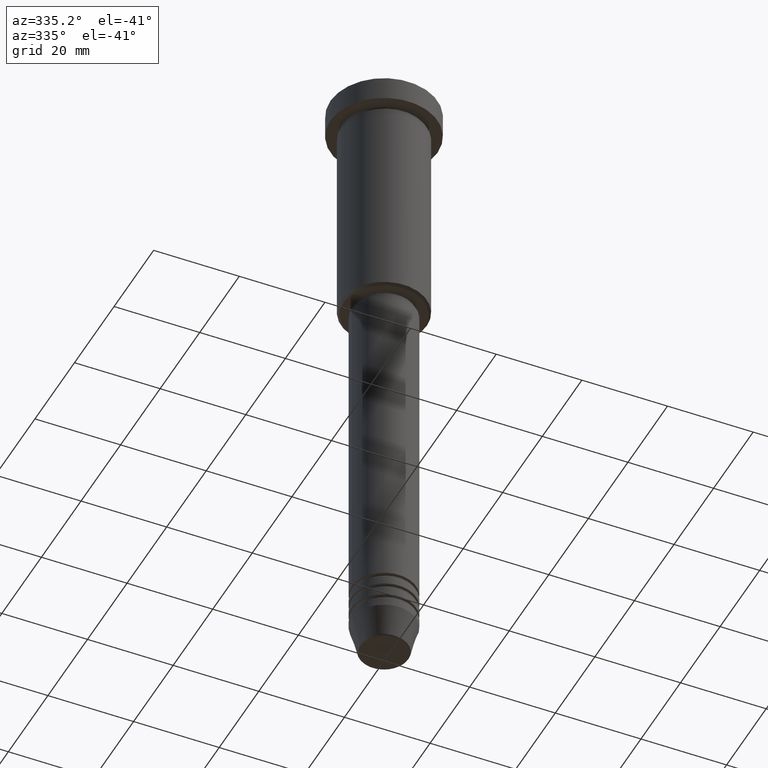
[diagram: clean part render]
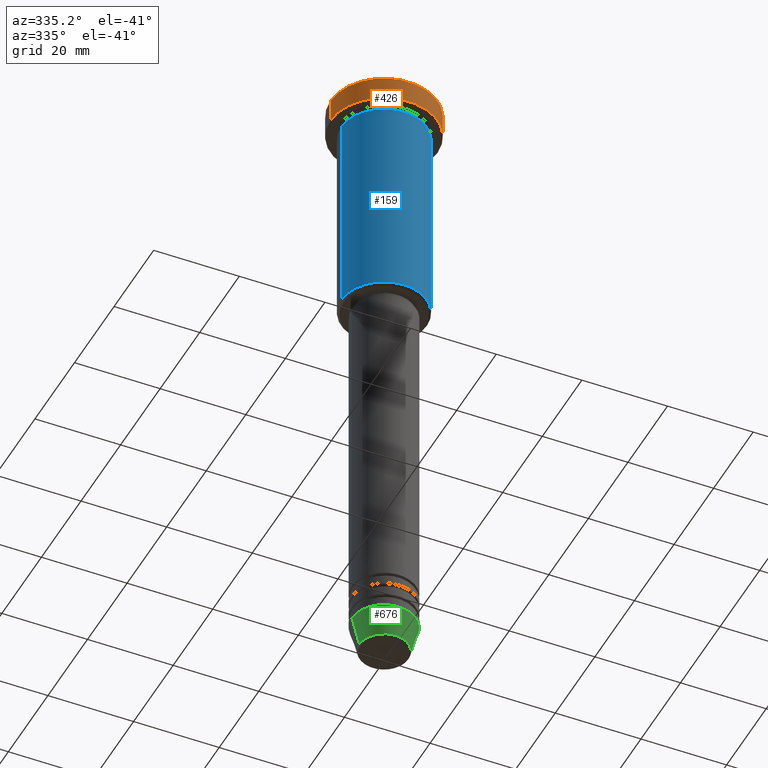
[diagram: same view with three faces highlighted in distinct colors, each labeled with its STEP entity id]
A machine part, auxiliary view with three faces highlighted in distinct colors.
Their STEP definitions:

[orange] entity #426 — the highlighted cylindrical surface (partial cylindrical patch) has radius 12.5 mm, axis along (-0, -0, 1).
#1 = CYLINDRICAL_SURFACE ( 'NONE', #507, 12.50000000000000000 ) ;
#100 = DIRECTION ( 'NONE',  ( 1.000000000000000000, 0.000000000000000000, 0.000000000000000000 ) ) ;
#155 = VECTOR ( 'NONE', #522, 1000.000000000000000 ) ;
#156 = CARTESIAN_POINT ( 'NONE',  ( 0.000000000000000000, 0.000000000000000000, -5.999999999999996447 ) ) ;
#170 = EDGE_LOOP ( 'NONE', ( #792, #616, #1119, #884 ) ) ;
#265 = FACE_OUTER_BOUND ( 'NONE', #170, .T. ) ;
#337 = VERTEX_POINT ( 'NONE', #732 ) ;
#357 = CARTESIAN_POINT ( 'NONE',  ( 0.000000000000000000, 0.000000000000000000, 0.000000000000000000 ) ) ;
#420 = VERTEX_POINT ( 'NONE', #887 ) ;
#426 = ADVANCED_FACE ( 'NONE', ( #265 ), #1, .T. ) ;
#473 = CIRCLE ( 'NONE', #972, 12.50000000000000000 ) ;
#507 = AXIS2_PLACEMENT_3D ( 'NONE', #357, #715, #621 ) ;
#509 = CARTESIAN_POINT ( 'NONE',  ( -12.50000000000000000, 1.530808498934191521E-15, -5.999999999999996447 ) ) ;
#522 = DIRECTION ( 'NONE',  ( -0.000000000000000000, -0.000000000000000000, 1.000000000000000000 ) ) ;
#551 = CARTESIAN_POINT ( 'NONE',  ( 0.000000000000000000, 0.000000000000000000, -0.5000000000000056621 ) ) ;
#557 = AXIS2_PLACEMENT_3D ( 'NONE', #551, #1094, #100 ) ;
#587 = CARTESIAN_POINT ( 'NONE',  ( -12.50000000000000000, 1.530808498934191521E-15, 0.000000000000000000 ) ) ;
#616 = ORIENTED_EDGE ( 'NONE', *, *, #979, .T. ) ;
#621 = DIRECTION ( 'NONE',  ( 1.000000000000000000, 0.000000000000000000, 0.000000000000000000 ) ) ;
#639 = CIRCLE ( 'NONE', #557, 12.50000000000000000 ) ;
#715 = DIRECTION ( 'NONE',  ( -0.000000000000000000, -0.000000000000000000, 1.000000000000000000 ) ) ;
#716 = DIRECTION ( 'NONE',  ( -0.000000000000000000, -0.000000000000000000, 1.000000000000000000 ) ) ;
#732 = CARTESIAN_POINT ( 'NONE',  ( 12.50000000000000000, 0.000000000000000000, -5.999999999999996447 ) ) ;
#763 = LINE ( 'NONE', #587, #832 ) ;
#792 = ORIENTED_EDGE ( 'NONE', *, *, #851, .F. ) ;
#832 = VECTOR ( 'NONE', #1131, 1000.000000000000000 ) ;
#851 = EDGE_CURVE ( 'NONE', #977, #420, #763, .T. ) ;
#881 = LINE ( 'NONE', #1069, #155 ) ;
#884 = ORIENTED_EDGE ( 'NONE', *, *, #1138, .T. ) ;
#887 = CARTESIAN_POINT ( 'NONE',  ( -12.50000000000000000, 1.530808498934191521E-15, -0.5000000000000056621 ) ) ;
#902 = DIRECTION ( 'NONE',  ( 1.000000000000000000, 0.000000000000000000, 0.000000000000000000 ) ) ;
#915 = EDGE_CURVE ( 'NONE', #337, #943, #881, .T. ) ;
#943 = VERTEX_POINT ( 'NONE', #1181 ) ;
#972 = AXIS2_PLACEMENT_3D ( 'NONE', #156, #716, #902 ) ;
#977 = VERTEX_POINT ( 'NONE', #509 ) ;
#979 = EDGE_CURVE ( 'NONE', #977, #337, #473, .T. ) ;
#1069 = CARTESIAN_POINT ( 'NONE',  ( 12.50000000000000000, 0.000000000000000000, 0.000000000000000000 ) ) ;
#1094 = DIRECTION ( 'NONE',  ( 0.000000000000000000, 0.000000000000000000, -1.000000000000000000 ) ) ;
#1119 = ORIENTED_EDGE ( 'NONE', *, *, #915, .T. ) ;
#1131 = DIRECTION ( 'NONE',  ( -0.000000000000000000, -0.000000000000000000, 1.000000000000000000 ) ) ;
#1138 = EDGE_CURVE ( 'NONE', #943, #420, #639, .T. ) ;
#1181 = CARTESIAN_POINT ( 'NONE',  ( 12.50000000000000000, 0.000000000000000000, -0.5000000000000056621 ) ) ;

[blue] entity #159 — the highlighted cylindrical surface (partial cylindrical patch) has radius 10 mm, axis along (-0, -0, 1).
#3 = CARTESIAN_POINT ( 'NONE',  ( -10.00000000000000000, 1.224646799147353256E-15, -55.49999999999995026 ) ) ;
#4 = DIRECTION ( 'NONE',  ( -1.000000000000000000, 0.000000000000000000, 0.000000000000000000 ) ) ;
#49 = LINE ( 'NONE', #328, #438 ) ;
#51 = ORIENTED_EDGE ( 'NONE', *, *, #761, .F. ) ;
#96 = AXIS2_PLACEMENT_3D ( 'NONE', #458, #269, #4 ) ;
#107 = DIRECTION ( 'NONE',  ( 1.000000000000000000, 0.000000000000000000, 0.000000000000000000 ) ) ;
#159 = ADVANCED_FACE ( 'NONE', ( #980 ), #878, .T. ) ;
#175 = ORIENTED_EDGE ( 'NONE', *, *, #550, .T. ) ;
#194 = DIRECTION ( 'NONE',  ( -0.000000000000000000, -0.000000000000000000, 1.000000000000000000 ) ) ;
#263 = ORIENTED_EDGE ( 'NONE', *, *, #604, .F. ) ;
#269 = DIRECTION ( 'NONE',  ( -0.000000000000000000, -0.000000000000000000, 1.000000000000000000 ) ) ;
#291 = VERTEX_POINT ( 'NONE', #738 ) ;
#300 = VERTEX_POINT ( 'NONE', #469 ) ;
#322 = CARTESIAN_POINT ( 'NONE',  ( -10.00000000000000000, 1.224646799147353256E-15, 0.000000000000000000 ) ) ;
#328 = CARTESIAN_POINT ( 'NONE',  ( 10.00000000000000000, 0.000000000000000000, 0.000000000000000000 ) ) ;
#345 = ORIENTED_EDGE ( 'NONE', *, *, #885, .T. ) ;
#348 = CARTESIAN_POINT ( 'NONE',  ( 0.000000000000000000, 0.000000000000000000, 0.000000000000000000 ) ) ;
#386 = VERTEX_POINT ( 'NONE', #894 ) ;
#424 = DIRECTION ( 'NONE',  ( -0.000000000000000000, -0.000000000000000000, 1.000000000000000000 ) ) ;
#438 = VECTOR ( 'NONE', #689, 1000.000000000000000 ) ;
#458 = CARTESIAN_POINT ( 'NONE',  ( 0.000000000000000000, 0.000000000000000000, -55.49999999999995026 ) ) ;
#469 = CARTESIAN_POINT ( 'NONE',  ( 10.00000000000000000, 0.000000000000000000, -6.999999999999996447 ) ) ;
#482 = LINE ( 'NONE', #322, #882 ) ;
#488 = DIRECTION ( 'NONE',  ( -0.000000000000000000, -0.000000000000000000, 1.000000000000000000 ) ) ;
#493 = AXIS2_PLACEMENT_3D ( 'NONE', #898, #194, #107 ) ;
#508 = DIRECTION ( 'NONE',  ( 1.000000000000000000, 0.000000000000000000, 0.000000000000000000 ) ) ;
#550 = EDGE_CURVE ( 'NONE', #1158, #291, #607, .T. ) ;
#604 = EDGE_CURVE ( 'NONE', #386, #300, #1007, .T. ) ;
#607 = CIRCLE ( 'NONE', #96, 10.00000000000000000 ) ;
#689 = DIRECTION ( 'NONE',  ( -0.000000000000000000, -0.000000000000000000, 1.000000000000000000 ) ) ;
#738 = CARTESIAN_POINT ( 'NONE',  ( 10.00000000000000000, 0.000000000000000000, -55.49999999999995026 ) ) ;
#761 = EDGE_CURVE ( 'NONE', #1158, #386, #482, .T. ) ;
#878 = CYLINDRICAL_SURFACE ( 'NONE', #941, 10.00000000000000000 ) ;
#882 = VECTOR ( 'NONE', #488, 1000.000000000000000 ) ;
#885 = EDGE_CURVE ( 'NONE', #291, #300, #49, .T. ) ;
#894 = CARTESIAN_POINT ( 'NONE',  ( -10.00000000000000000, 1.224646799147353256E-15, -6.999999999999996447 ) ) ;
#898 = CARTESIAN_POINT ( 'NONE',  ( 0.000000000000000000, 0.000000000000000000, -6.999999999999996447 ) ) ;
#941 = AXIS2_PLACEMENT_3D ( 'NONE', #348, #424, #508 ) ;
#980 = FACE_OUTER_BOUND ( 'NONE', #1071, .T. ) ;
#1007 = CIRCLE ( 'NONE', #493, 10.00000000000000000 ) ;
#1071 = EDGE_LOOP ( 'NONE', ( #51, #175, #345, #263 ) ) ;
#1158 = VERTEX_POINT ( 'NONE', #3 ) ;

[green] entity #676 — the highlighted conical surface has half-angle 15 deg.
#19 = CIRCLE ( 'NONE', #323, 7.500000000000000000 ) ;
#39 = CIRCLE ( 'NONE', #629, 5.723655072137191269 ) ;
#62 = ORIENTED_EDGE ( 'NONE', *, *, #940, .T. ) ;
#128 = CONICAL_SURFACE ( 'NONE', #673, 7.500000000000000000, 0.2617993877991500740 ) ;
#132 = CARTESIAN_POINT ( 'NONE',  ( -7.500000000000000000, 9.184850993605147944E-16, -144.0000000000000284 ) ) ;
#153 = CARTESIAN_POINT ( 'NONE',  ( 0.000000000000000000, 0.000000000000000000, -150.6294095225512706 ) ) ;
#163 = CARTESIAN_POINT ( 'NONE',  ( 0.000000000000000000, 0.000000000000000000, -144.0000000000000284 ) ) ;
#205 = EDGE_CURVE ( 'NONE', #785, #665, #1159, .T. ) ;
#239 = CARTESIAN_POINT ( 'NONE',  ( 5.723655072137191269, 0.000000000000000000, -150.6294095225512706 ) ) ;
#252 = ORIENTED_EDGE ( 'NONE', *, *, #978, .F. ) ;
#323 = AXIS2_PLACEMENT_3D ( 'NONE', #163, #341, #891 ) ;
#341 = DIRECTION ( 'NONE',  ( -0.000000000000000000, -0.000000000000000000, 1.000000000000000000 ) ) ;
#387 = ORIENTED_EDGE ( 'NONE', *, *, #205, .T. ) ;
#408 = DIRECTION ( 'NONE',  ( -0.2588190451025213501, 3.169619151431772337E-17, 0.9659258262890680902 ) ) ;
#436 = EDGE_LOOP ( 'NONE', ( #669, #62, #387, #252 ) ) ;
#471 = CARTESIAN_POINT ( 'NONE',  ( 7.500000000000000000, 0.000000000000000000, -144.0000000000000284 ) ) ;
#534 = VERTEX_POINT ( 'NONE', #713 ) ;
#629 = AXIS2_PLACEMENT_3D ( 'NONE', #153, #1059, #1161 ) ;
#662 = FACE_OUTER_BOUND ( 'NONE', #436, .T. ) ;
#665 = VERTEX_POINT ( 'NONE', #471 ) ;
#669 = ORIENTED_EDGE ( 'NONE', *, *, #771, .F. ) ;
#673 = AXIS2_PLACEMENT_3D ( 'NONE', #1028, #844, #925 ) ;
#676 = ADVANCED_FACE ( 'NONE', ( #662 ), #128, .T. ) ;
#713 = CARTESIAN_POINT ( 'NONE',  ( -5.723655072137191269, 8.097153428560735915E-16, -150.6294095225512706 ) ) ;
#771 = EDGE_CURVE ( 'NONE', #534, #1048, #843, .T. ) ;
#781 = CARTESIAN_POINT ( 'NONE',  ( 7.500000000000000000, 0.000000000000000000, -144.0000000000000284 ) ) ;
#785 = VERTEX_POINT ( 'NONE', #239 ) ;
#843 = LINE ( 'NONE', #132, #1091 ) ;
#844 = DIRECTION ( 'NONE',  ( -0.000000000000000000, -0.000000000000000000, 1.000000000000000000 ) ) ;
#891 = DIRECTION ( 'NONE',  ( 1.000000000000000000, 0.000000000000000000, 0.000000000000000000 ) ) ;
#896 = CARTESIAN_POINT ( 'NONE',  ( -7.500000000000000000, 9.184850993605147944E-16, -144.0000000000000284 ) ) ;
#925 = DIRECTION ( 'NONE',  ( 1.000000000000000000, 0.000000000000000000, 0.000000000000000000 ) ) ;
#940 = EDGE_CURVE ( 'NONE', #534, #785, #39, .T. ) ;
#970 = VECTOR ( 'NONE', #1057, 1000.000000000000000 ) ;
#978 = EDGE_CURVE ( 'NONE', #1048, #665, #19, .T. ) ;
#1028 = CARTESIAN_POINT ( 'NONE',  ( 0.000000000000000000, 0.000000000000000000, -144.0000000000000284 ) ) ;
#1048 = VERTEX_POINT ( 'NONE', #896 ) ;
#1057 = DIRECTION ( 'NONE',  ( 0.2588190451025213501, 0.000000000000000000, 0.9659258262890680902 ) ) ;
#1059 = DIRECTION ( 'NONE',  ( -0.000000000000000000, -0.000000000000000000, 1.000000000000000000 ) ) ;
#1091 = VECTOR ( 'NONE', #408, 1000.000000000000000 ) ;
#1159 = LINE ( 'NONE', #781, #970 ) ;
#1161 = DIRECTION ( 'NONE',  ( 1.000000000000000000, 0.000000000000000000, 0.000000000000000000 ) ) ;